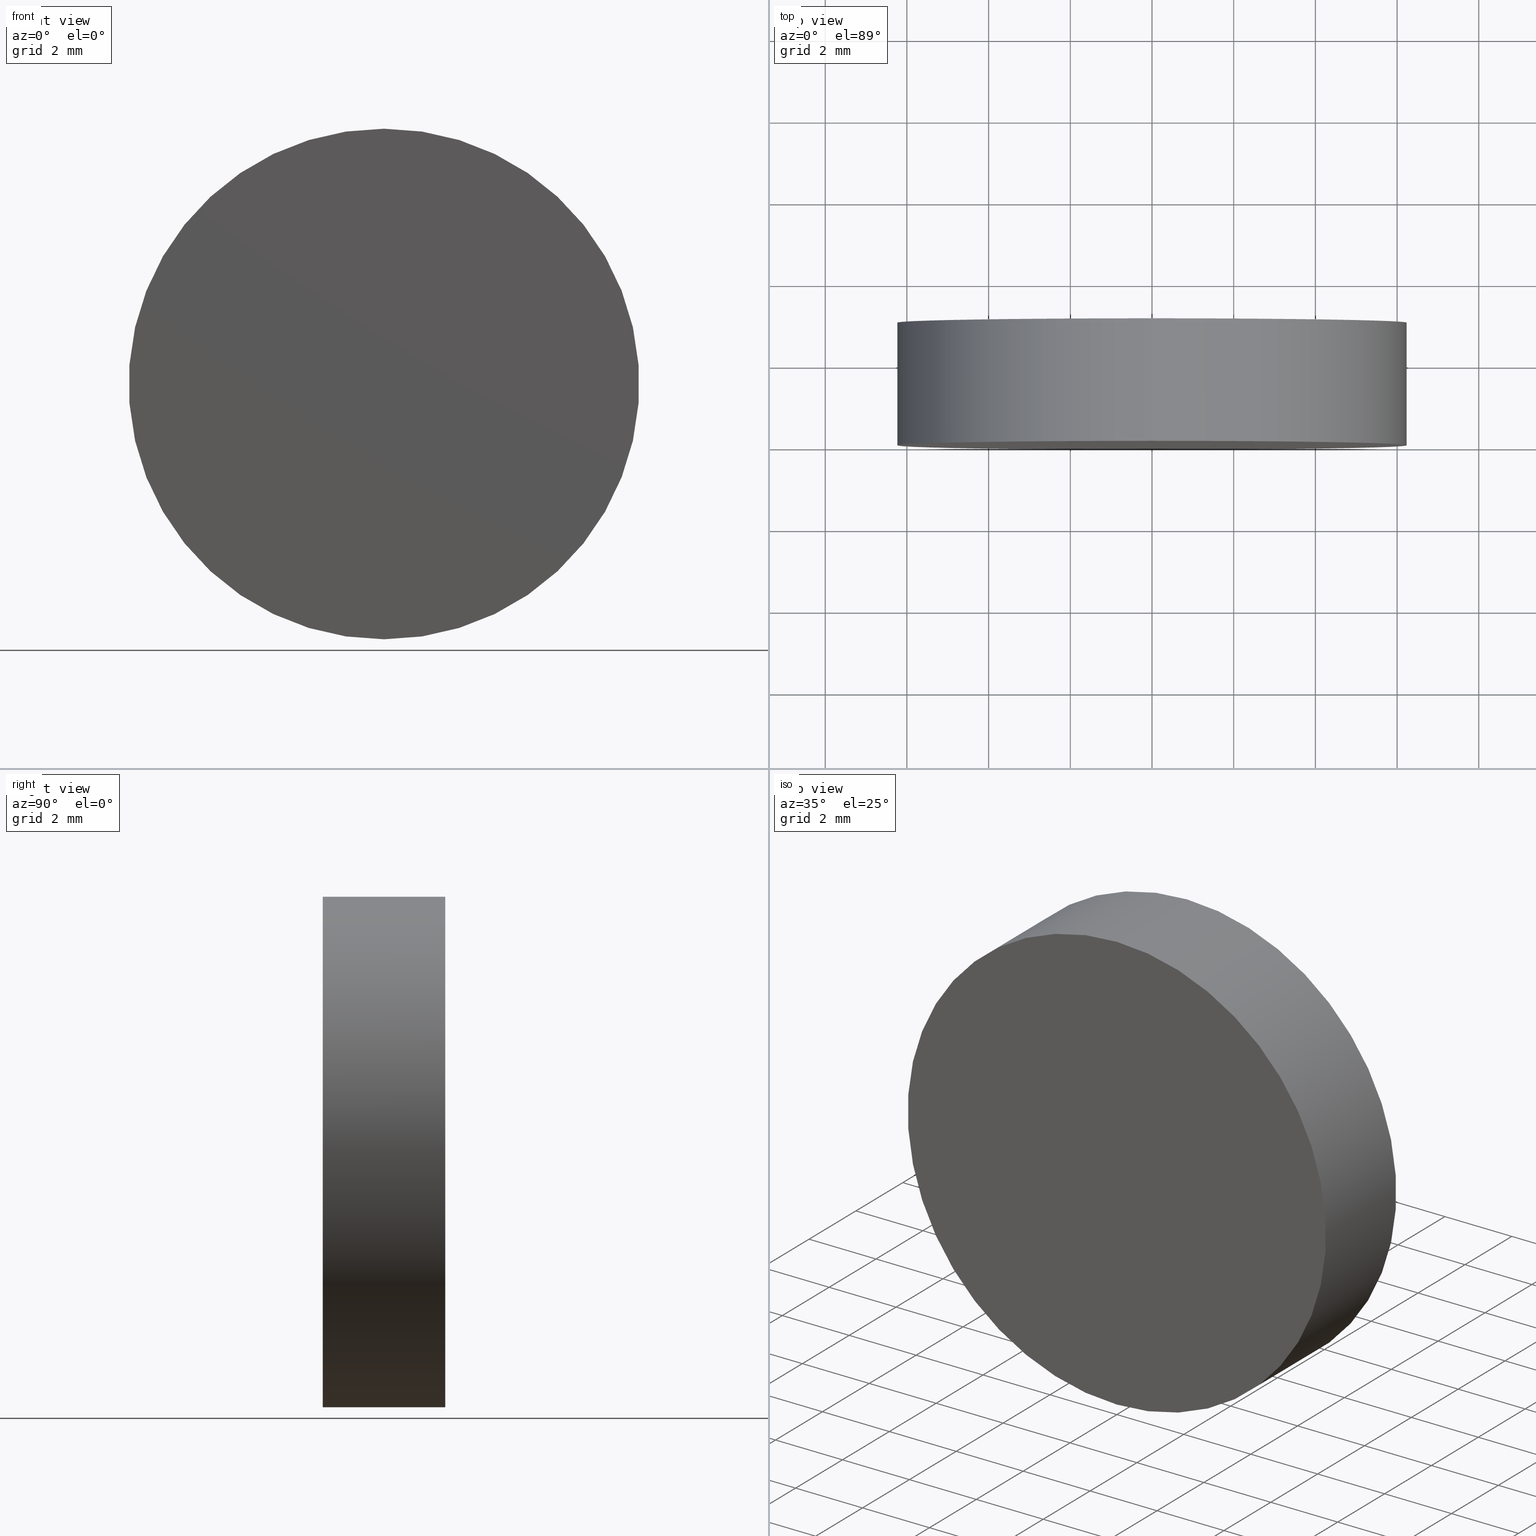
[diagram: canonical four-view strip — front | top / right | iso, engineering-drawing reading convention]
A machine part, canonical four-view strip (front | top / right | iso — engineering-drawing reading convention). The complete STEP part file that produces these views, byte-faithful:
ISO-10303-21;
HEADER;
FILE_DESCRIPTION (( 'STEP AP214' ),
    '1' );
FILE_NAME ('345500.STEP',
    '2019-08-12T01:55:14',
    ( 'user' ),
    ( '΢���й�' ),
    'SwSTEP 2.0',
    'SolidWorks 2016',
    '' );
FILE_SCHEMA (( 'AUTOMOTIVE_DESIGN' ));
ENDSEC;

DATA;
#1 = ORIENTED_EDGE ( 'NONE', *, *, #136, .T. ) ;
#2 = EDGE_CURVE ( 'NONE', #16, #79, #128, .T. ) ;
#3 = CIRCLE ( 'NONE', #37, 6.250000000000000000 ) ;
#4 = CARTESIAN_POINT ( 'NONE',  ( 0.0000000000000000000, 3.000000000000000000, 0.0000000000000000000 ) ) ;
#5 = EDGE_CURVE ( 'NONE', #92, #16, #87, .T. ) ;
#6 = DIRECTION ( 'NONE',  ( 1.000000000000000000, 0.0000000000000000000, 0.0000000000000000000 ) ) ;
#7 = PRODUCT ( '345500', '345500', '', ( #69 ) ) ;
#8 = ADVANCED_BREP_SHAPE_REPRESENTATION ( '345500', ( #22, #106 ), #30 ) ;
#9 =( NAMED_UNIT ( * ) SI_UNIT ( $, .STERADIAN. ) SOLID_ANGLE_UNIT ( ) );
#10 = UNCERTAINTY_MEASURE_WITH_UNIT (LENGTH_MEASURE( 1.000000000000000100E-005 ), #94, 'distance_accuracy_value', 'NONE');
#11 = AXIS2_PLACEMENT_3D ( 'NONE', #57, #54, #117 ) ;
#12 = UNCERTAINTY_MEASURE_WITH_UNIT (LENGTH_MEASURE( 1.000000000000000100E-005 ), #72, 'distance_accuracy_value', 'NONE');
#13 = PLANE ( 'NONE',  #70 ) ;
#14 = COLOUR_RGB ( '',1.000000000000000000, 1.000000000000000000, 1.000000000000000000 ) ;
#15 = FACE_OUTER_BOUND ( 'NONE', #74, .T. ) ;
#16 = VERTEX_POINT ( 'NONE', #100 ) ;
#17 = CARTESIAN_POINT ( 'NONE',  ( 7.654042494670957600E-016, 3.000000000000000000, 6.250000000000000000 ) ) ;
#18 = DIRECTION ( 'NONE',  ( 0.0000000000000000000, 0.0000000000000000000, -1.000000000000000000 ) ) ;
#19 = CIRCLE ( 'NONE', #76, 6.250000000000000000 ) ;
#20 = STYLED_ITEM ( 'NONE', ( #102 ), #22 ) ;
#21 = CYLINDRICAL_SURFACE ( 'NONE', #45, 6.250000000000000000 ) ;
#22 = MANIFOLD_SOLID_BREP ( '͹̨-����1', #24 ) ;
#23 = AXIS2_PLACEMENT_3D ( 'NONE', #4, #121, #101 ) ;
#24 = CLOSED_SHELL ( 'NONE', ( #123, #26, #80, #68 ) ) ;
#25 = VERTEX_POINT ( 'NONE', #66 ) ;
#26 = ADVANCED_FACE ( 'NONE', ( #139 ), #134, .T. ) ;
#27 = PRESENTATION_LAYER_ASSIGNMENT (  '', '', ( #20 ) ) ;
#28 =( NAMED_UNIT ( * ) PLANE_ANGLE_UNIT ( ) SI_UNIT ( $, .RADIAN. ) );
#29 = DIRECTION ( 'NONE',  ( 0.0000000000000000000, 0.0000000000000000000, 1.000000000000000000 ) ) ;
#30 =( GEOMETRIC_REPRESENTATION_CONTEXT ( 3 ) GLOBAL_UNCERTAINTY_ASSIGNED_CONTEXT ( ( #10 ) ) GLOBAL_UNIT_ASSIGNED_CONTEXT ( ( #94, #85, #9 ) ) REPRESENTATION_CONTEXT ( 'NONE', 'WORKASPACE' ) );
#31 = ORIENTED_EDGE ( 'NONE', *, *, #108, .T. ) ;
#32 = SURFACE_SIDE_STYLE ('',( #97 ) ) ;
#33 = VECTOR ( 'NONE', #86, 1000.000000000000000 ) ;
#34 = ORIENTED_EDGE ( 'NONE', *, *, #124, .F. ) ;
#35 = MECHANICAL_DESIGN_GEOMETRIC_PRESENTATION_REPRESENTATION (  '', ( #20 ), #41 ) ;
#36 = DIRECTION ( 'NONE',  ( 0.0000000000000000000, 1.000000000000000000, 0.0000000000000000000 ) ) ;
#37 = AXIS2_PLACEMENT_3D ( 'NONE', #116, #110, #29 ) ;
#38 = SURFACE_STYLE_USAGE ( .BOTH. , #115 ) ;
#39 = FACE_OUTER_BOUND ( 'NONE', #49, .T. ) ;
#40 = DIRECTION ( 'NONE',  ( -0.0000000000000000000, -1.000000000000000000, -0.0000000000000000000 ) ) ;
#41 =( GEOMETRIC_REPRESENTATION_CONTEXT ( 3 ) GLOBAL_UNCERTAINTY_ASSIGNED_CONTEXT ( ( #12 ) ) GLOBAL_UNIT_ASSIGNED_CONTEXT ( ( #72, #129, #46 ) ) REPRESENTATION_CONTEXT ( 'NONE', 'WORKASPACE' ) );
#42 = CARTESIAN_POINT ( 'NONE',  ( 0.0000000000000000000, 3.000000000000000000, 0.0000000000000000000 ) ) ;
#43 = LINE ( 'NONE', #17, #33 ) ;
#44 = CARTESIAN_POINT ( 'NONE',  ( 7.654042494670957600E-016, 0.0000000000000000000, 6.250000000000000000 ) ) ;
#45 = AXIS2_PLACEMENT_3D ( 'NONE', #91, #96, #47 ) ;
#46 =( NAMED_UNIT ( * ) SI_UNIT ( $, .STERADIAN. ) SOLID_ANGLE_UNIT ( ) );
#47 = DIRECTION ( 'NONE',  ( 0.0000000000000000000, 0.0000000000000000000, -1.000000000000000000 ) ) ;
#48 = EDGE_LOOP ( 'NONE', ( #51, #109, #31, #71 ) ) ;
#49 = EDGE_LOOP ( 'NONE', ( #119, #1 ) ) ;
#50 = FILL_AREA_STYLE ('',( #75 ) ) ;
#51 = ORIENTED_EDGE ( 'NONE', *, *, #136, .F. ) ;
#52 = DIRECTION ( 'NONE',  ( -0.0000000000000000000, -1.000000000000000000, -0.0000000000000000000 ) ) ;
#53 = ORIENTED_EDGE ( 'NONE', *, *, #113, .F. ) ;
#54 = DIRECTION ( 'NONE',  ( 0.0000000000000000000, 1.000000000000000000, 0.0000000000000000000 ) ) ;
#55 = PRESENTATION_STYLE_ASSIGNMENT (( #38 ) ) ;
#56 = CARTESIAN_POINT ( 'NONE',  ( 0.0000000000000000000, 3.000000000000000000, -6.250000000000000000 ) ) ;
#57 = CARTESIAN_POINT ( 'NONE',  ( 0.0000000000000000000, 0.0000000000000000000, 0.0000000000000000000 ) ) ;
#58 = STYLED_ITEM ( 'NONE', ( #55 ), #8 ) ;
#59 = SURFACE_STYLE_FILL_AREA ( #50 ) ;
#60 = COLOUR_RGB ( '',1.000000000000000000, 1.000000000000000000, 1.000000000000000000 ) ;
#61 = CARTESIAN_POINT ( 'NONE',  ( 0.0000000000000000000, 3.000000000000000000, 0.0000000000000000000 ) ) ;
#62 = AXIS2_PLACEMENT_3D ( 'NONE', #61, #40, #18 ) ;
#63 = PRESENTATION_LAYER_ASSIGNMENT (  '', '', ( #58 ) ) ;
#64 = CARTESIAN_POINT ( 'NONE',  ( 0.0000000000000000000, 0.0000000000000000000, 0.0000000000000000000 ) ) ;
#65 = PRODUCT_DEFINITION_SHAPE ( 'NONE', 'NONE',  #112 ) ;
#66 = CARTESIAN_POINT ( 'NONE',  ( 7.654042494670957600E-016, 3.000000000000000000, 6.250000000000000000 ) ) ;
#67 = VECTOR ( 'NONE', #52, 1000.000000000000000 ) ;
#68 = ADVANCED_FACE ( 'NONE', ( #15 ), #13, .F. ) ;
#69 = PRODUCT_CONTEXT ( 'NONE', #127, 'mechanical' ) ;
#70 = AXIS2_PLACEMENT_3D ( 'NONE', #104, #135, #132 ) ;
#71 = ORIENTED_EDGE ( 'NONE', *, *, #5, .F. ) ;
#72 =( LENGTH_UNIT ( ) NAMED_UNIT ( * ) SI_UNIT ( .MILLI., .METRE. ) );
#73 = MECHANICAL_DESIGN_GEOMETRIC_PRESENTATION_REPRESENTATION (  '', ( #58 ), #81 ) ;
#74 = EDGE_LOOP ( 'NONE', ( #122, #105 ) ) ;
#75 = FILL_AREA_STYLE_COLOUR ( '', #60 ) ;
#76 = AXIS2_PLACEMENT_3D ( 'NONE', #64, #137, #120 ) ;
#77 = DIRECTION ( 'NONE',  ( 0.0000000000000000000, -0.0000000000000000000, 1.000000000000000000 ) ) ;
#78 = ORIENTED_EDGE ( 'NONE', *, *, #5, .T. ) ;
#79 = VERTEX_POINT ( 'NONE', #44 ) ;
#80 = ADVANCED_FACE ( 'NONE', ( #39 ), #89, .T. ) ;
#81 =( GEOMETRIC_REPRESENTATION_CONTEXT ( 3 ) GLOBAL_UNCERTAINTY_ASSIGNED_CONTEXT ( ( #82 ) ) GLOBAL_UNIT_ASSIGNED_CONTEXT ( ( #107, #28, #93 ) ) REPRESENTATION_CONTEXT ( 'NONE', 'WORKASPACE' ) );
#82 = UNCERTAINTY_MEASURE_WITH_UNIT (LENGTH_MEASURE( 1.000000000000000100E-005 ), #107, 'distance_accuracy_value', 'NONE');
#83 = EDGE_LOOP ( 'NONE', ( #34, #53, #78, #131 ) ) ;
#84 = DIRECTION ( 'NONE',  ( 0.0000000000000000000, 0.0000000000000000000, 1.000000000000000000 ) ) ;
#85 =( NAMED_UNIT ( * ) PLANE_ANGLE_UNIT ( ) SI_UNIT ( $, .RADIAN. ) );
#86 = DIRECTION ( 'NONE',  ( -0.0000000000000000000, -1.000000000000000000, -0.0000000000000000000 ) ) ;
#87 = LINE ( 'NONE', #90, #67 ) ;
#88 = AXIS2_PLACEMENT_3D ( 'NONE', #42, #36, #77 ) ;
#89 = PLANE ( 'NONE',  #88 ) ;
#90 = CARTESIAN_POINT ( 'NONE',  ( 0.0000000000000000000, 3.000000000000000000, -6.250000000000000000 ) ) ;
#91 = CARTESIAN_POINT ( 'NONE',  ( 0.0000000000000000000, 3.000000000000000000, 0.0000000000000000000 ) ) ;
#92 = VERTEX_POINT ( 'NONE', #56 ) ;
#93 =( NAMED_UNIT ( * ) SI_UNIT ( $, .STERADIAN. ) SOLID_ANGLE_UNIT ( ) );
#94 =( LENGTH_UNIT ( ) NAMED_UNIT ( * ) SI_UNIT ( .MILLI., .METRE. ) );
#95 = CARTESIAN_POINT ( 'NONE',  ( 0.0000000000000000000, 0.0000000000000000000, 0.0000000000000000000 ) ) ;
#96 = DIRECTION ( 'NONE',  ( -0.0000000000000000000, -1.000000000000000000, -0.0000000000000000000 ) ) ;
#97 = SURFACE_STYLE_FILL_AREA ( #111 ) ;
#98 = SURFACE_STYLE_USAGE ( .BOTH. , #32 ) ;
#99 = FACE_OUTER_BOUND ( 'NONE', #48, .T. ) ;
#100 = CARTESIAN_POINT ( 'NONE',  ( 0.0000000000000000000, 0.0000000000000000000, -6.250000000000000000 ) ) ;
#101 = DIRECTION ( 'NONE',  ( 0.0000000000000000000, 0.0000000000000000000, 1.000000000000000000 ) ) ;
#102 = PRESENTATION_STYLE_ASSIGNMENT (( #98 ) ) ;
#103 = FILL_AREA_STYLE_COLOUR ( '', #14 ) ;
#104 = CARTESIAN_POINT ( 'NONE',  ( 0.0000000000000000000, 0.0000000000000000000, 0.0000000000000000000 ) ) ;
#105 = ORIENTED_EDGE ( 'NONE', *, *, #108, .F. ) ;
#106 = AXIS2_PLACEMENT_3D ( 'NONE', #95, #84, #6 ) ;
#107 =( LENGTH_UNIT ( ) NAMED_UNIT ( * ) SI_UNIT ( .MILLI., .METRE. ) );
#108 = EDGE_CURVE ( 'NONE', #79, #16, #19, .T. ) ;
#109 = ORIENTED_EDGE ( 'NONE', *, *, #124, .T. ) ;
#110 = DIRECTION ( 'NONE',  ( 0.0000000000000000000, 1.000000000000000000, 0.0000000000000000000 ) ) ;
#111 = FILL_AREA_STYLE ('',( #103 ) ) ;
#112 = PRODUCT_DEFINITION ( 'δ֪', '', #118, #130 ) ;
#113 = EDGE_CURVE ( 'NONE', #92, #25, #114, .T. ) ;
#114 = CIRCLE ( 'NONE', #23, 6.250000000000000000 ) ;
#115 = SURFACE_SIDE_STYLE ('',( #59 ) ) ;
#116 = CARTESIAN_POINT ( 'NONE',  ( 0.0000000000000000000, 3.000000000000000000, 0.0000000000000000000 ) ) ;
#117 = DIRECTION ( 'NONE',  ( 0.0000000000000000000, 0.0000000000000000000, 1.000000000000000000 ) ) ;
#118 = PRODUCT_DEFINITION_FORMATION_WITH_SPECIFIED_SOURCE ( '�κ�', '', #7, .NOT_KNOWN. ) ;
#119 = ORIENTED_EDGE ( 'NONE', *, *, #113, .T. ) ;
#120 = DIRECTION ( 'NONE',  ( 0.0000000000000000000, 0.0000000000000000000, 1.000000000000000000 ) ) ;
#121 = DIRECTION ( 'NONE',  ( 0.0000000000000000000, 1.000000000000000000, 0.0000000000000000000 ) ) ;
#122 = ORIENTED_EDGE ( 'NONE', *, *, #2, .F. ) ;
#123 = ADVANCED_FACE ( 'NONE', ( #99 ), #21, .T. ) ;
#124 = EDGE_CURVE ( 'NONE', #25, #79, #43, .T. ) ;
#125 = PRODUCT_RELATED_PRODUCT_CATEGORY ( 'part', '', ( #7 ) ) ;
#126 = APPLICATION_PROTOCOL_DEFINITION ( 'draft international standard', 'automotive_design', 1998, #138 ) ;
#127 = APPLICATION_CONTEXT ( 'automotive_design' ) ;
#128 = CIRCLE ( 'NONE', #11, 6.250000000000000000 ) ;
#129 =( NAMED_UNIT ( * ) PLANE_ANGLE_UNIT ( ) SI_UNIT ( $, .RADIAN. ) );
#130 = PRODUCT_DEFINITION_CONTEXT ( 'detailed design', #138, 'design' ) ;
#131 = ORIENTED_EDGE ( 'NONE', *, *, #2, .T. ) ;
#132 = DIRECTION ( 'NONE',  ( 0.0000000000000000000, -0.0000000000000000000, 1.000000000000000000 ) ) ;
#133 = SHAPE_DEFINITION_REPRESENTATION ( #65, #8 ) ;
#134 = CYLINDRICAL_SURFACE ( 'NONE', #62, 6.250000000000000000 ) ;
#135 = DIRECTION ( 'NONE',  ( 0.0000000000000000000, 1.000000000000000000, 0.0000000000000000000 ) ) ;
#136 = EDGE_CURVE ( 'NONE', #25, #92, #3, .T. ) ;
#137 = DIRECTION ( 'NONE',  ( 0.0000000000000000000, 1.000000000000000000, 0.0000000000000000000 ) ) ;
#138 = APPLICATION_CONTEXT ( 'automotive_design' ) ;
#139 = FACE_OUTER_BOUND ( 'NONE', #83, .T. ) ;
#140 = APPLICATION_PROTOCOL_DEFINITION ( 'draft international standard', 'automotive_design', 1998, #127 ) ;
ENDSEC;
END-ISO-10303-21;
